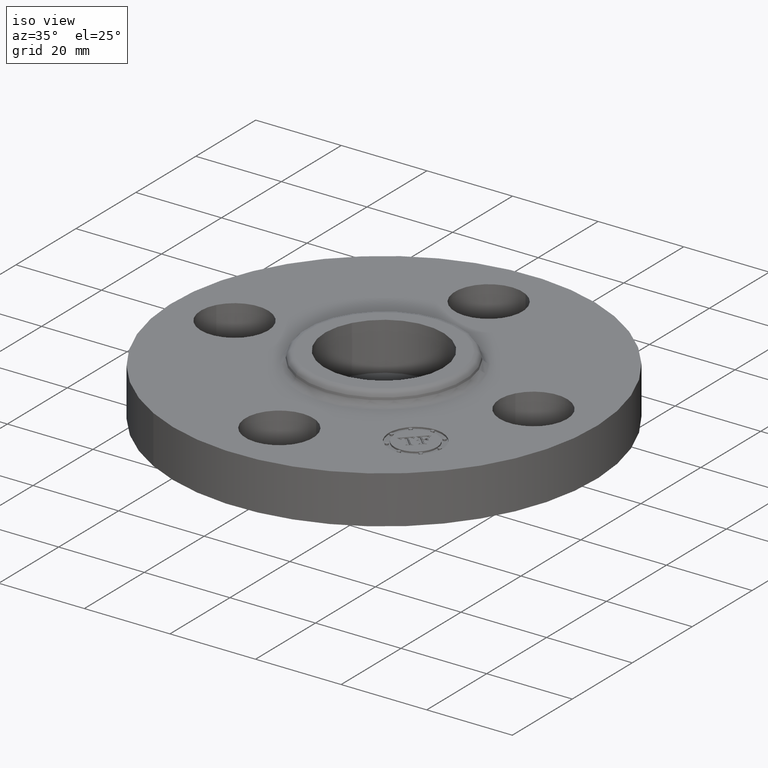
[diagram: clean part render]
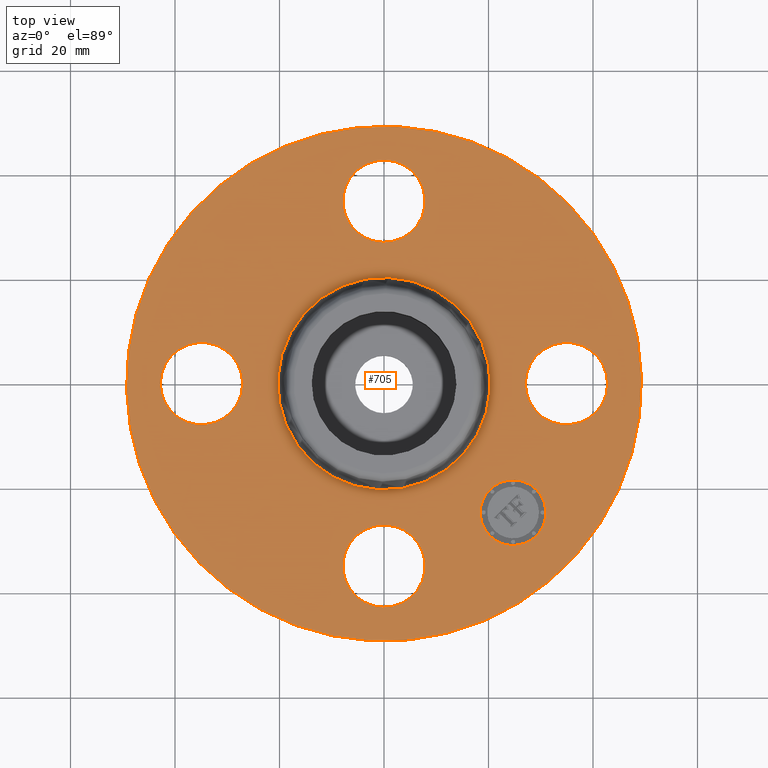
[diagram: tour spotlight — one face highlighted and labeled with its STEP entity id]
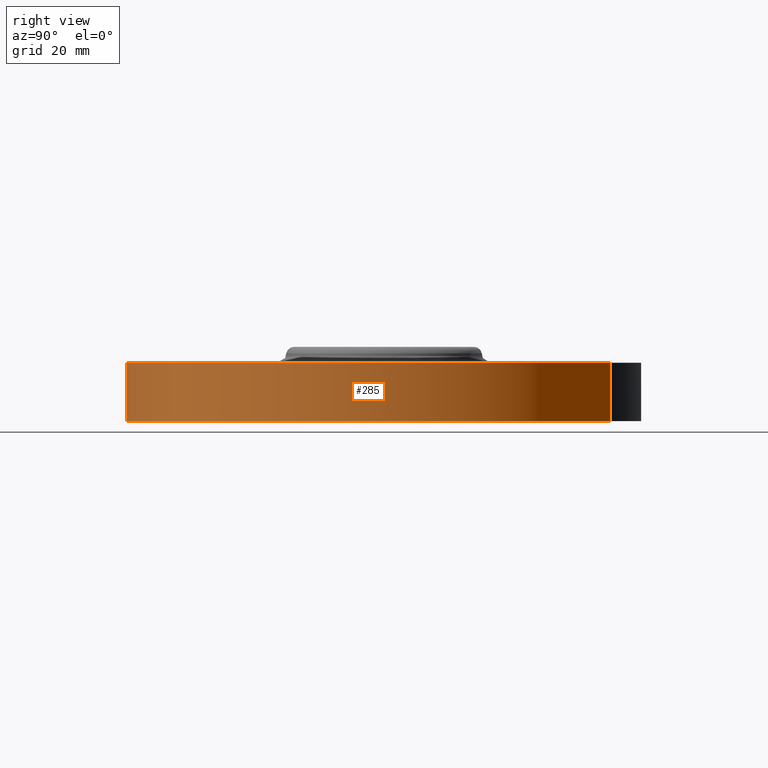
[diagram: tour spotlight — one face highlighted and labeled with its STEP entity id]
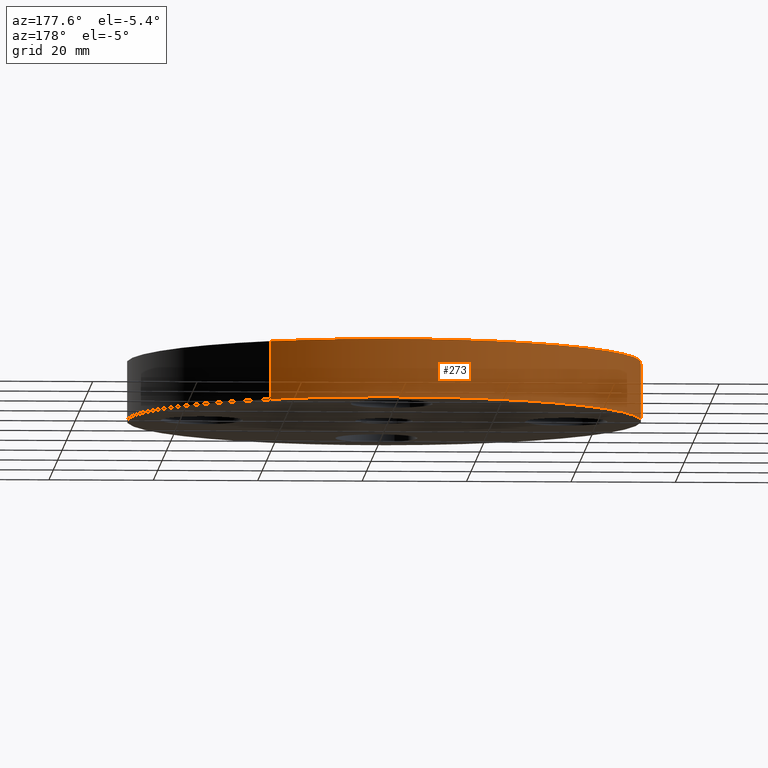
[diagram: tour spotlight — one face highlighted and labeled with its STEP entity id]
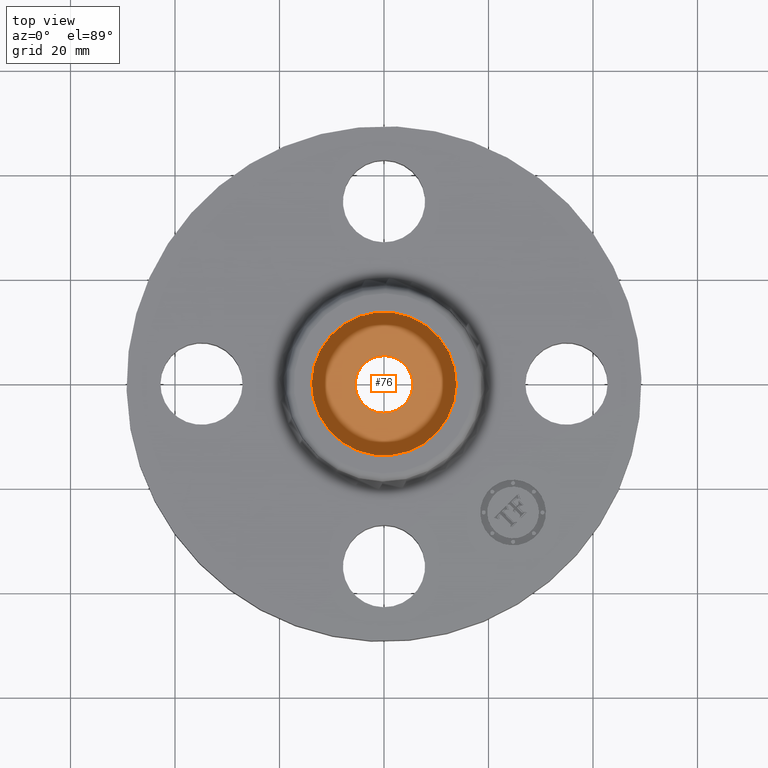
[diagram: tour spotlight — one face highlighted and labeled with its STEP entity id]
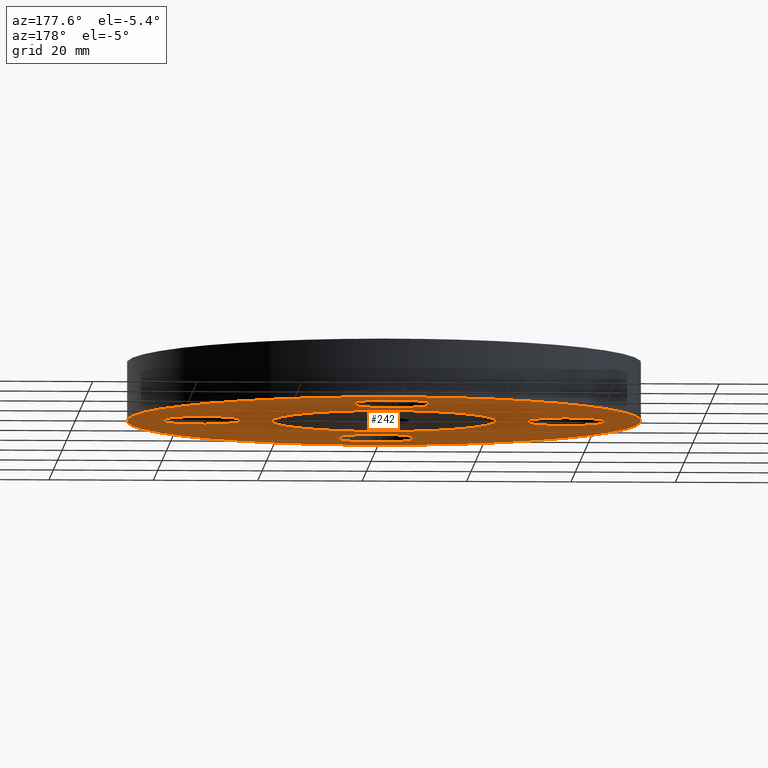
[diagram: tour spotlight — one face highlighted and labeled with its STEP entity id]
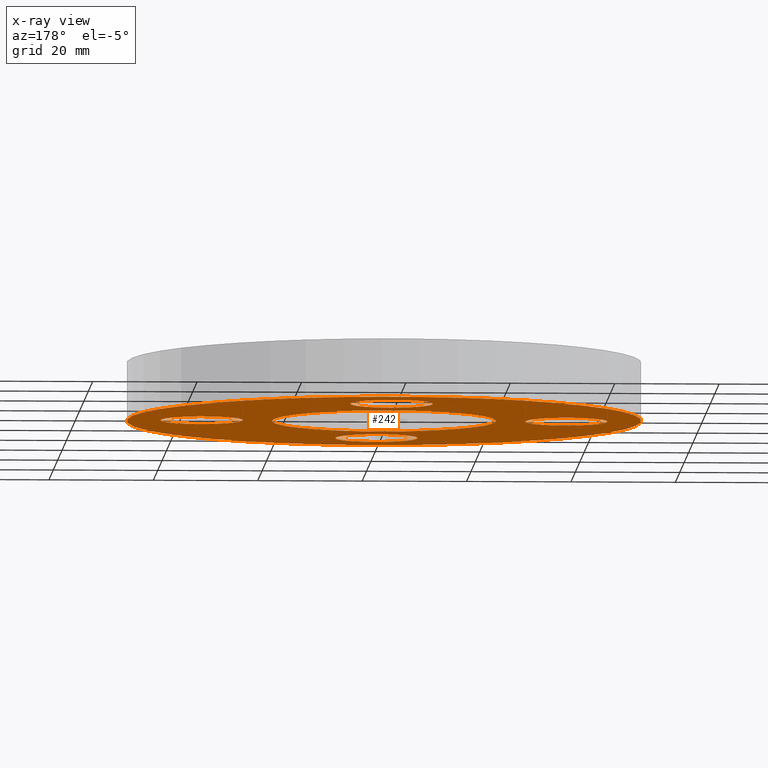
[diagram: x-ray of the same camera — body ghosted, this tour face saturated]
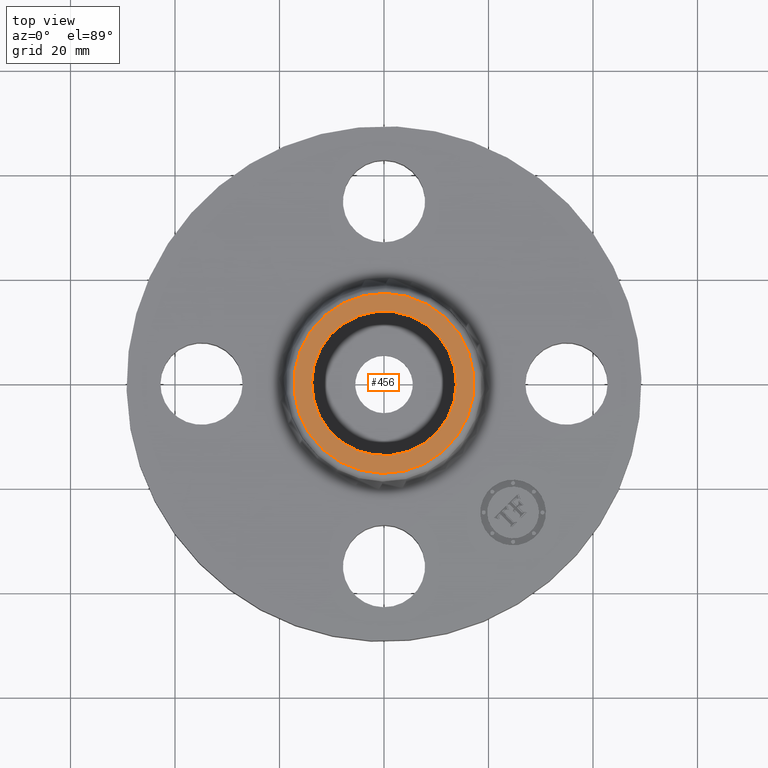
[diagram: tour spotlight — one face highlighted and labeled with its STEP entity id]
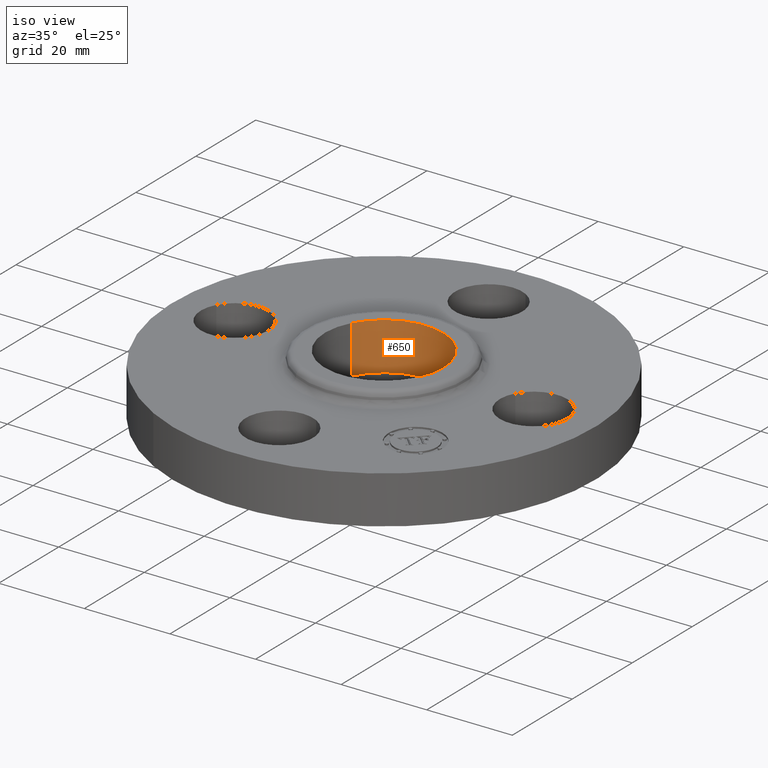
[diagram: tour spotlight — one face highlighted and labeled with its STEP entity id]
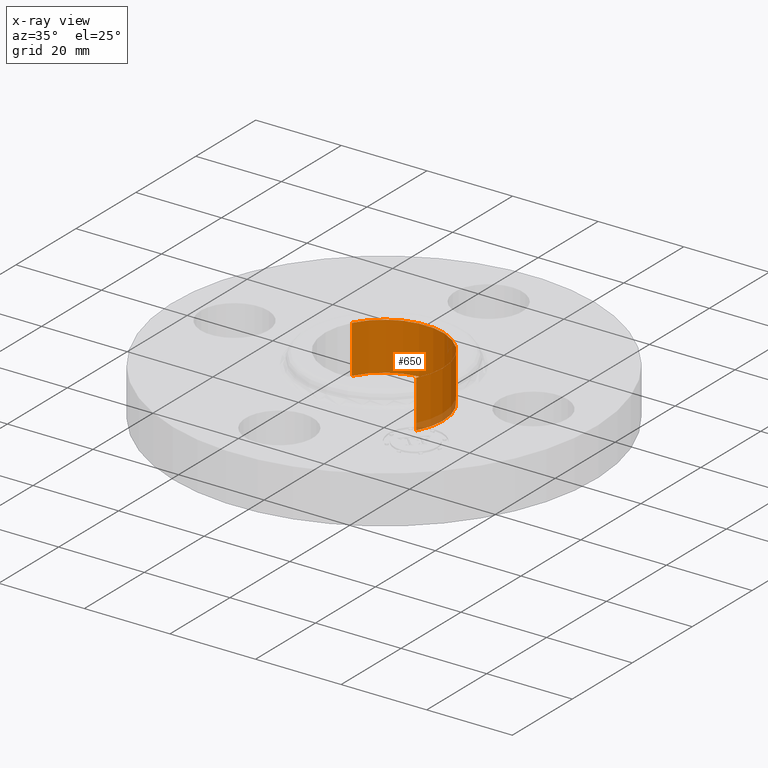
[diagram: x-ray of the same camera — body ghosted, this tour face saturated]
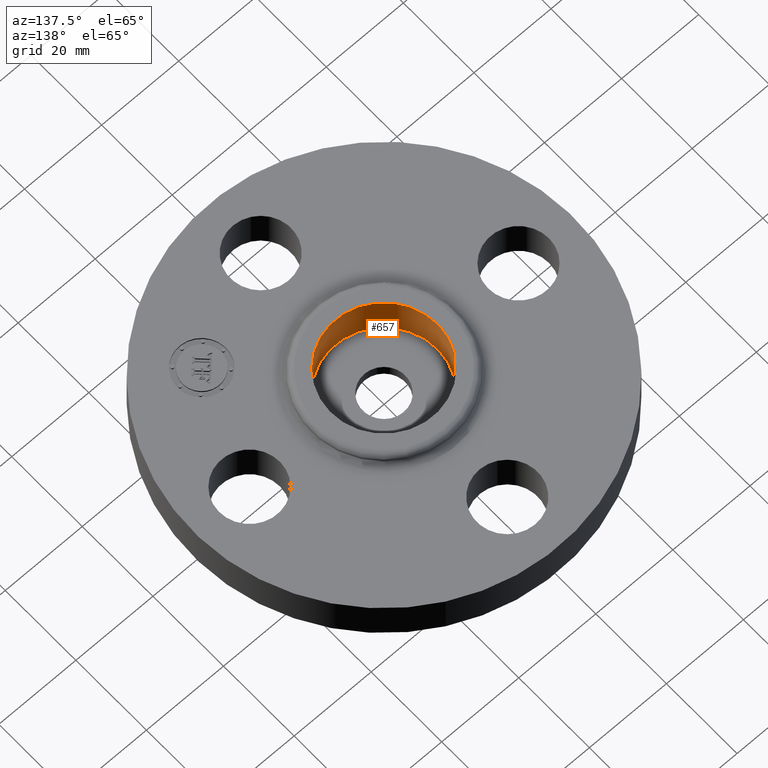
[diagram: tour spotlight — one face highlighted and labeled with its STEP entity id]
A machine part: a face-by-face anatomy tour. The part has 410 B-rep faces; the first image is the clean iso view, then the 8 largest visible faces are spotlighted one at a time (largest first), each with its STEP entity span.

Face 1 — top view, entity #705. In plain terms, the highlighted planar face has unit normal (0, 0, -1).
Definition (entity closure, byte-faithful):
#257=AXIS2_PLACEMENT_3D('Circle Axis2P3D',#255,#256,$) ;
#276=AXIS2_PLACEMENT_3D('Circle Axis2P3D',#274,#275,$) ;
#293=AXIS2_PLACEMENT_3D('Circle Axis2P3D',#291,#292,$) ;
#328=AXIS2_PLACEMENT_3D('Circle Axis2P3D',#326,#327,$) ;
#478=AXIS2_PLACEMENT_3D('Circle Axis2P3D',#476,#477,$) ;
#490=AXIS2_PLACEMENT_3D('Circle Axis2P3D',#488,#489,$) ;
#521=AXIS2_PLACEMENT_3D('Circle Axis2P3D',#519,#520,$) ;
#533=AXIS2_PLACEMENT_3D('Circle Axis2P3D',#531,#532,$) ;
#564=AXIS2_PLACEMENT_3D('Circle Axis2P3D',#562,#563,$) ;
#576=AXIS2_PLACEMENT_3D('Circle Axis2P3D',#574,#575,$) ;
#607=AXIS2_PLACEMENT_3D('Circle Axis2P3D',#605,#606,$) ;
#619=AXIS2_PLACEMENT_3D('Circle Axis2P3D',#617,#618,$) ;
#661=AXIS2_PLACEMENT_3D('Plane Axis2P3D',#658,#659,#660) ;
#689=AXIS2_PLACEMENT_3D('Circle Axis2P3D',#687,#688,$) ;
#698=AXIS2_PLACEMENT_3D('Circle Axis2P3D',#696,#697,$) ;
#252=CARTESIAN_POINT('Vertex',(-0.930085544896,-1.70251017007,0.440000000002)) ;
#255=CARTESIAN_POINT('Axis2P3D Location',(0.,0.,0.440000000002)) ;
#259=CARTESIAN_POINT('Vertex',(0.930085544896,1.70251017007,0.440000000002)) ;
#274=CARTESIAN_POINT('Axis2P3D Location',(0.,0.,0.440000000002)) ;
#291=CARTESIAN_POINT('Axis2P3D Location',(0.,0.,0.440000000002)) ;
#295=CARTESIAN_POINT('Vertex',(0.383706301512,0.702369673661,0.440000000002)) ;
#297=CARTESIAN_POINT('Vertex',(-0.383706301512,-0.702369673661,0.440000000002)) ;
#326=CARTESIAN_POINT('Axis2P3D Location',(0.,0.,0.440000000002)) ;
#466=CARTESIAN_POINT('Vertex',(0.148621916968,1.64705059419,0.440000000002)) ;
#473=CARTESIAN_POINT('Vertex',(-0.148621916968,1.10294940582,0.440000000002)) ;
#476=CARTESIAN_POINT('Axis2P3D Location',(-2.52583402325E-016,1.37500000001,0.440000000002)) ;
#488=CARTESIAN_POINT('Axis2P3D Location',(-2.52583402325E-016,1.37500000001,0.440000000002)) ;
#509=CARTESIAN_POINT('Vertex',(-1.64705059419,0.148621916968,0.440000000002)) ;
#516=CARTESIAN_POINT('Vertex',(-1.10294940582,-0.148621916968,0.440000000002)) ;
#519=CARTESIAN_POINT('Axis2P3D Location',(-1.37500000001,-1.68388934883E-016,0.440000000002)) ;
#531=CARTESIAN_POINT('Axis2P3D Location',(-1.37500000001,-1.68388934883E-016,0.440000000002)) ;
#552=CARTESIAN_POINT('Vertex',(-0.148621916968,-1.64705059419,0.440000000002)) ;
#559=CARTESIAN_POINT('Vertex',(0.148621916968,-1.10294940582,0.440000000002)) ;
#562=CARTESIAN_POINT('Axis2P3D Location',(-1.9554676711E-016,-1.37500000001,0.440000000002)) ;
#574=CARTESIAN_POINT('Axis2P3D Location',(-1.9554676711E-016,-1.37500000001,0.440000000002)) ;
#595=CARTESIAN_POINT('Vertex',(1.10294940582,0.148621916968,0.440000000002)) ;
#602=CARTESIAN_POINT('Vertex',(1.64705059419,-0.148621916968,0.440000000002)) ;
#605=CARTESIAN_POINT('Axis2P3D Location',(1.37500000001,0.,0.440000000002)) ;
#617=CARTESIAN_POINT('Axis2P3D Location',(1.37500000001,0.,0.440000000002)) ;
#658=CARTESIAN_POINT('Axis2P3D Location',(0.,1.94000000001,0.440000000002)) ;
#687=CARTESIAN_POINT('Axis2P3D Location',(0.972271824135,-0.972271824135,0.440000000002)) ;
#691=CARTESIAN_POINT('Vertex',(1.14728075248,-0.797262895791,0.440000000002)) ;
#693=CARTESIAN_POINT('Vertex',(0.797262895791,-1.14728075248,0.440000000002)) ;
#696=CARTESIAN_POINT('Axis2P3D Location',(0.972271824135,-0.972271824135,0.440000000002)) ;
#256=DIRECTION('Axis2P3D Direction',(0.,0.,-0.0393700787402)) ;
#275=DIRECTION('Axis2P3D Direction',(0.,0.,-0.0393700787402)) ;
#292=DIRECTION('Axis2P3D Direction',(0.,0.,-0.0393700787402)) ;
#327=DIRECTION('Axis2P3D Direction',(0.,0.,-0.0393700787402)) ;
#477=DIRECTION('Axis2P3D Direction',(0.,0.,-0.0393700787402)) ;
#489=DIRECTION('Axis2P3D Direction',(0.,0.,-0.0393700787402)) ;
#520=DIRECTION('Axis2P3D Direction',(-0.,0.,-0.0393700787402)) ;
#532=DIRECTION('Axis2P3D Direction',(-0.,0.,-0.0393700787402)) ;
#563=DIRECTION('Axis2P3D Direction',(0.,-0.,-0.0393700787402)) ;
#575=DIRECTION('Axis2P3D Direction',(0.,-0.,-0.0393700787402)) ;
#606=DIRECTION('Axis2P3D Direction',(0.,-0.,-0.0393700787402)) ;
#618=DIRECTION('Axis2P3D Direction',(0.,-0.,-0.0393700787402)) ;
#659=DIRECTION('Axis2P3D Direction',(0.,0.,-0.0393700787402)) ;
#660=DIRECTION('Axis2P3D XDirection',(0.0393700787402,0.,0.)) ;
#688=DIRECTION('Axis2P3D Direction',(0.,0.,-0.0393700787402)) ;
#697=DIRECTION('Axis2P3D Direction',(0.,0.,-0.0393700787402)) ;
#664=ORIENTED_EDGE('',*,*,#278,.F.) ;
#665=ORIENTED_EDGE('',*,*,#261,.F.) ;
#668=ORIENTED_EDGE('',*,*,#609,.T.) ;
#669=ORIENTED_EDGE('',*,*,#621,.T.) ;
#672=ORIENTED_EDGE('',*,*,#330,.T.) ;
#673=ORIENTED_EDGE('',*,*,#299,.T.) ;
#676=ORIENTED_EDGE('',*,*,#566,.T.) ;
#677=ORIENTED_EDGE('',*,*,#578,.T.) ;
#680=ORIENTED_EDGE('',*,*,#523,.T.) ;
#681=ORIENTED_EDGE('',*,*,#535,.T.) ;
#684=ORIENTED_EDGE('',*,*,#480,.T.) ;
#685=ORIENTED_EDGE('',*,*,#492,.T.) ;
#702=ORIENTED_EDGE('',*,*,#695,.T.) ;
#703=ORIENTED_EDGE('',*,*,#700,.T.) ;
#670=FACE_BOUND('',#667,.T.) ;
#674=FACE_BOUND('',#671,.T.) ;
#678=FACE_BOUND('',#675,.T.) ;
#682=FACE_BOUND('',#679,.T.) ;
#686=FACE_BOUND('',#683,.T.) ;
#704=FACE_BOUND('',#701,.T.) ;
#705=ADVANCED_FACE('PartBody',(#666,#670,#674,#678,#682,#686,#704),#662,.F.) ;
#258=CIRCLE('generated circle',#257,1.94000000001) ;
#277=CIRCLE('generated circle',#276,1.94000000001) ;
#294=CIRCLE('generated circle',#293,0.800345977874) ;
#329=CIRCLE('generated circle',#328,0.800345977874) ;
#479=CIRCLE('generated circle',#478,0.310000000001) ;
#491=CIRCLE('generated circle',#490,0.310000000001) ;
#522=CIRCLE('generated circle',#521,0.310000000001) ;
#534=CIRCLE('generated circle',#533,0.310000000001) ;
#565=CIRCLE('generated circle',#564,0.310000000001) ;
#577=CIRCLE('generated circle',#576,0.310000000001) ;
#608=CIRCLE('generated circle',#607,0.310000000001) ;
#620=CIRCLE('generated circle',#619,0.310000000001) ;
#690=CIRCLE('generated circle',#689,0.247500000001) ;
#699=CIRCLE('generated circle',#698,0.247500000001) ;
#261=EDGE_CURVE('',#253,#260,#258,.T.) ;
#278=EDGE_CURVE('',#260,#253,#277,.T.) ;
#299=EDGE_CURVE('',#296,#298,#294,.T.) ;
#330=EDGE_CURVE('',#298,#296,#329,.T.) ;
#480=EDGE_CURVE('',#467,#474,#479,.T.) ;
#492=EDGE_CURVE('',#474,#467,#491,.T.) ;
#523=EDGE_CURVE('',#510,#517,#522,.T.) ;
#535=EDGE_CURVE('',#517,#510,#534,.T.) ;
#566=EDGE_CURVE('',#553,#560,#565,.T.) ;
#578=EDGE_CURVE('',#560,#553,#577,.T.) ;
#609=EDGE_CURVE('',#596,#603,#608,.T.) ;
#621=EDGE_CURVE('',#603,#596,#620,.T.) ;
#695=EDGE_CURVE('',#692,#694,#690,.T.) ;
#700=EDGE_CURVE('',#694,#692,#699,.T.) ;
#663=EDGE_LOOP('',(#664,#665)) ;
#667=EDGE_LOOP('',(#668,#669)) ;
#671=EDGE_LOOP('',(#672,#673)) ;
#675=EDGE_LOOP('',(#676,#677)) ;
#679=EDGE_LOOP('',(#680,#681)) ;
#683=EDGE_LOOP('',(#684,#685)) ;
#701=EDGE_LOOP('',(#702,#703)) ;
#666=FACE_OUTER_BOUND('',#663,.T.) ;
#662=PLANE('',#661) ;
#253=VERTEX_POINT('',#252) ;
#260=VERTEX_POINT('',#259) ;
#296=VERTEX_POINT('',#295) ;
#298=VERTEX_POINT('',#297) ;
#467=VERTEX_POINT('',#466) ;
#474=VERTEX_POINT('',#473) ;
#510=VERTEX_POINT('',#509) ;
#517=VERTEX_POINT('',#516) ;
#553=VERTEX_POINT('',#552) ;
#560=VERTEX_POINT('',#559) ;
#596=VERTEX_POINT('',#595) ;
#603=VERTEX_POINT('',#602) ;
#692=VERTEX_POINT('',#691) ;
#694=VERTEX_POINT('',#693) ;

Face 2 — right view, entity #285. In plain terms, the highlighted cylindrical surface (partial cylindrical patch) has radius 49.276 mm, axis along (0, 0, -1).
Definition (entity closure, byte-faithful):
#159=AXIS2_PLACEMENT_3D('Circle Axis2P3D',#157,#158,$) ;
#246=AXIS2_PLACEMENT_3D('Cylinder Axis2P3D',#243,#244,#245) ;
#276=AXIS2_PLACEMENT_3D('Circle Axis2P3D',#274,#275,$) ;
#152=CARTESIAN_POINT('Vertex',(-0.930085544896,-1.70251017007,2.09805925913E-016)) ;
#154=CARTESIAN_POINT('Vertex',(0.930085544896,1.70251017007,2.09805925913E-016)) ;
#157=CARTESIAN_POINT('Axis2P3D Location',(0.,0.,0.)) ;
#243=CARTESIAN_POINT('Axis2P3D Location',(0.,0.,0.280000000001)) ;
#248=CARTESIAN_POINT('Line Origine',(-0.930085544896,-1.70251017007,0.220000000001)) ;
#252=CARTESIAN_POINT('Vertex',(-0.930085544896,-1.70251017007,0.440000000002)) ;
#259=CARTESIAN_POINT('Vertex',(0.930085544896,1.70251017007,0.440000000002)) ;
#262=CARTESIAN_POINT('Line Origine',(0.930085544896,1.70251017007,0.220000000001)) ;
#274=CARTESIAN_POINT('Axis2P3D Location',(0.,0.,0.440000000002)) ;
#158=DIRECTION('Axis2P3D Direction',(0.,0.,-0.0393700787402)) ;
#244=DIRECTION('Axis2P3D Direction',(0.,0.,-0.0393700787402)) ;
#245=DIRECTION('Axis2P3D XDirection',(0.0188750212049,0.0345504945626,0.)) ;
#249=DIRECTION('Vector Direction',(0.,0.,-0.0393700787402)) ;
#263=DIRECTION('Vector Direction',(0.,0.,-0.0393700787402)) ;
#275=DIRECTION('Axis2P3D Direction',(0.,0.,-0.0393700787402)) ;
#250=VECTOR('Line Direction',#249,0.0393700787402) ;
#264=VECTOR('Line Direction',#263,0.0393700787402) ;
#280=ORIENTED_EDGE('',*,*,#161,.F.) ;
#281=ORIENTED_EDGE('',*,*,#266,.T.) ;
#282=ORIENTED_EDGE('',*,*,#278,.T.) ;
#283=ORIENTED_EDGE('',*,*,#254,.F.) ;
#285=ADVANCED_FACE('PartBody',(#284),#247,.T.) ;
#160=CIRCLE('generated circle',#159,1.94000000001) ;
#277=CIRCLE('generated circle',#276,1.94000000001) ;
#247=CYLINDRICAL_SURFACE('generated cylinder',#246,1.94000000001) ;
#161=EDGE_CURVE('',#155,#153,#160,.T.) ;
#254=EDGE_CURVE('',#153,#253,#251,.F.) ;
#266=EDGE_CURVE('',#155,#260,#265,.F.) ;
#278=EDGE_CURVE('',#260,#253,#277,.T.) ;
#279=EDGE_LOOP('',(#280,#281,#282,#283)) ;
#284=FACE_OUTER_BOUND('',#279,.T.) ;
#251=LINE('Line',#248,#250) ;
#265=LINE('Line',#262,#264) ;
#153=VERTEX_POINT('',#152) ;
#155=VERTEX_POINT('',#154) ;
#253=VERTEX_POINT('',#252) ;
#260=VERTEX_POINT('',#259) ;

Face 3 — auxiliary view, entity #273. In plain terms, the highlighted cylindrical surface (partial cylindrical patch) has radius 49.276 mm, axis along (0, 0, -1).
Definition (entity closure, byte-faithful):
#150=AXIS2_PLACEMENT_3D('Circle Axis2P3D',#148,#149,$) ;
#246=AXIS2_PLACEMENT_3D('Cylinder Axis2P3D',#243,#244,#245) ;
#257=AXIS2_PLACEMENT_3D('Circle Axis2P3D',#255,#256,$) ;
#148=CARTESIAN_POINT('Axis2P3D Location',(0.,0.,0.)) ;
#152=CARTESIAN_POINT('Vertex',(-0.930085544896,-1.70251017007,2.09805925913E-016)) ;
#154=CARTESIAN_POINT('Vertex',(0.930085544896,1.70251017007,2.09805925913E-016)) ;
#243=CARTESIAN_POINT('Axis2P3D Location',(0.,0.,0.280000000001)) ;
#248=CARTESIAN_POINT('Line Origine',(-0.930085544896,-1.70251017007,0.220000000001)) ;
#252=CARTESIAN_POINT('Vertex',(-0.930085544896,-1.70251017007,0.440000000002)) ;
#255=CARTESIAN_POINT('Axis2P3D Location',(0.,0.,0.440000000002)) ;
#259=CARTESIAN_POINT('Vertex',(0.930085544896,1.70251017007,0.440000000002)) ;
#262=CARTESIAN_POINT('Line Origine',(0.930085544896,1.70251017007,0.220000000001)) ;
#149=DIRECTION('Axis2P3D Direction',(0.,0.,-0.0393700787402)) ;
#244=DIRECTION('Axis2P3D Direction',(0.,0.,-0.0393700787402)) ;
#245=DIRECTION('Axis2P3D XDirection',(0.0188750212049,0.0345504945626,0.)) ;
#249=DIRECTION('Vector Direction',(0.,0.,-0.0393700787402)) ;
#256=DIRECTION('Axis2P3D Direction',(0.,0.,-0.0393700787402)) ;
#263=DIRECTION('Vector Direction',(0.,0.,-0.0393700787402)) ;
#250=VECTOR('Line Direction',#249,0.0393700787402) ;
#264=VECTOR('Line Direction',#263,0.0393700787402) ;
#268=ORIENTED_EDGE('',*,*,#156,.F.) ;
#269=ORIENTED_EDGE('',*,*,#254,.T.) ;
#270=ORIENTED_EDGE('',*,*,#261,.T.) ;
#271=ORIENTED_EDGE('',*,*,#266,.F.) ;
#273=ADVANCED_FACE('PartBody',(#272),#247,.T.) ;
#151=CIRCLE('generated circle',#150,1.94000000001) ;
#258=CIRCLE('generated circle',#257,1.94000000001) ;
#247=CYLINDRICAL_SURFACE('generated cylinder',#246,1.94000000001) ;
#156=EDGE_CURVE('',#153,#155,#151,.T.) ;
#254=EDGE_CURVE('',#153,#253,#251,.F.) ;
#261=EDGE_CURVE('',#253,#260,#258,.T.) ;
#266=EDGE_CURVE('',#155,#260,#265,.F.) ;
#267=EDGE_LOOP('',(#268,#269,#270,#271)) ;
#272=FACE_OUTER_BOUND('',#267,.T.) ;
#251=LINE('Line',#248,#250) ;
#265=LINE('Line',#262,#264) ;
#153=VERTEX_POINT('',#152) ;
#155=VERTEX_POINT('',#154) ;
#253=VERTEX_POINT('',#252) ;
#260=VERTEX_POINT('',#259) ;

Face 4 — top view, entity #76. In plain terms, the highlighted planar face has unit normal (0, 0, -1).
Definition (entity closure, byte-faithful):
#38=AXIS2_PLACEMENT_3D('Plane Axis2P3D',#35,#36,#37) ;
#42=AXIS2_PLACEMENT_3D('Circle Axis2P3D',#40,#41,$) ;
#51=AXIS2_PLACEMENT_3D('Circle Axis2P3D',#49,#50,$) ;
#60=AXIS2_PLACEMENT_3D('Circle Axis2P3D',#58,#59,$) ;
#69=AXIS2_PLACEMENT_3D('Circle Axis2P3D',#67,#68,$) ;
#35=CARTESIAN_POINT('Axis2P3D Location',(0.,-6.99353086378E-017,0.12)) ;
#40=CARTESIAN_POINT('Axis2P3D Location',(0.,-6.99353086378E-017,0.12)) ;
#44=CARTESIAN_POINT('Vertex',(-0.478282496232,0.26128691854,0.12)) ;
#46=CARTESIAN_POINT('Vertex',(0.478282496232,-0.26128691854,0.12)) ;
#49=CARTESIAN_POINT('Axis2P3D Location',(0.,-6.99353086378E-017,0.12)) ;
#58=CARTESIAN_POINT('Axis2P3D Location',(-8.74191357973E-017,-4.37095678986E-017,0.12)) ;
#62=CARTESIAN_POINT('Vertex',(-0.104035341878,-0.190435415931,0.12)) ;
#64=CARTESIAN_POINT('Vertex',(0.104035341878,0.190435415931,0.12)) ;
#67=CARTESIAN_POINT('Axis2P3D Location',(-8.74191357973E-017,-4.37095678986E-017,0.12)) ;
#36=DIRECTION('Axis2P3D Direction',(0.,0.,-0.0393700787402)) ;
#37=DIRECTION('Axis2P3D XDirection',(0.0393700787402,0.,0.)) ;
#41=DIRECTION('Axis2P3D Direction',(0.,0.,-0.0393700787402)) ;
#50=DIRECTION('Axis2P3D Direction',(0.,0.,-0.0393700787402)) ;
#59=DIRECTION('Axis2P3D Direction',(0.,0.,-0.0393700787402)) ;
#68=DIRECTION('Axis2P3D Direction',(0.,0.,-0.0393700787402)) ;
#55=ORIENTED_EDGE('',*,*,#48,.F.) ;
#56=ORIENTED_EDGE('',*,*,#53,.F.) ;
#73=ORIENTED_EDGE('',*,*,#66,.T.) ;
#74=ORIENTED_EDGE('',*,*,#71,.T.) ;
#75=FACE_BOUND('',#72,.T.) ;
#76=ADVANCED_FACE('PartBody',(#57,#75),#39,.F.) ;
#43=CIRCLE('generated circle',#42,0.545000000002) ;
#52=CIRCLE('generated circle',#51,0.545000000002) ;
#61=CIRCLE('generated circle',#60,0.217000000001) ;
#70=CIRCLE('generated circle',#69,0.217000000001) ;
#48=EDGE_CURVE('',#45,#47,#43,.T.) ;
#53=EDGE_CURVE('',#47,#45,#52,.T.) ;
#66=EDGE_CURVE('',#63,#65,#61,.T.) ;
#71=EDGE_CURVE('',#65,#63,#70,.T.) ;
#54=EDGE_LOOP('',(#55,#56)) ;
#72=EDGE_LOOP('',(#73,#74)) ;
#57=FACE_OUTER_BOUND('',#54,.T.) ;
#39=PLANE('',#38) ;
#45=VERTEX_POINT('',#44) ;
#47=VERTEX_POINT('',#46) ;
#63=VERTEX_POINT('',#62) ;
#65=VERTEX_POINT('',#64) ;

Face 5 — auxiliary view, entity #242. An x-ray twin of the same camera follows (body ghosted, this face saturated) — the face is partly hidden behind the body. In plain terms, the highlighted planar face has unit normal (0, 0, -1).
Definition (entity closure, byte-faithful):
#123=AXIS2_PLACEMENT_3D('Plane Axis2P3D',#120,#121,#122) ;
#127=AXIS2_PLACEMENT_3D('Circle Axis2P3D',#125,#126,$) ;
#136=AXIS2_PLACEMENT_3D('Circle Axis2P3D',#134,#135,$) ;
#150=AXIS2_PLACEMENT_3D('Circle Axis2P3D',#148,#149,$) ;
#159=AXIS2_PLACEMENT_3D('Circle Axis2P3D',#157,#158,$) ;
#168=AXIS2_PLACEMENT_3D('Circle Axis2P3D',#166,#167,$) ;
#177=AXIS2_PLACEMENT_3D('Circle Axis2P3D',#175,#176,$) ;
#190=AXIS2_PLACEMENT_3D('Circle Axis2P3D',#188,#189,$) ;
#199=AXIS2_PLACEMENT_3D('Circle Axis2P3D',#197,#198,$) ;
#208=AXIS2_PLACEMENT_3D('Circle Axis2P3D',#206,#207,$) ;
#217=AXIS2_PLACEMENT_3D('Circle Axis2P3D',#215,#216,$) ;
#226=AXIS2_PLACEMENT_3D('Circle Axis2P3D',#224,#225,$) ;
#235=AXIS2_PLACEMENT_3D('Circle Axis2P3D',#233,#234,$) ;
#120=CARTESIAN_POINT('Axis2P3D Location',(0.,0.217000000001,0.)) ;
#125=CARTESIAN_POINT('Axis2P3D Location',(0.,0.,0.)) ;
#129=CARTESIAN_POINT('Vertex',(-0.405114580122,-0.7415572648,0.)) ;
#131=CARTESIAN_POINT('Vertex',(0.405114580122,0.7415572648,0.)) ;
#134=CARTESIAN_POINT('Axis2P3D Location',(0.,0.,0.)) ;
#148=CARTESIAN_POINT('Axis2P3D Location',(0.,0.,0.)) ;
#152=CARTESIAN_POINT('Vertex',(-0.930085544896,-1.70251017007,2.09805925913E-016)) ;
#154=CARTESIAN_POINT('Vertex',(0.930085544896,1.70251017007,2.09805925913E-016)) ;
#157=CARTESIAN_POINT('Axis2P3D Location',(0.,0.,0.)) ;
#166=CARTESIAN_POINT('Axis2P3D Location',(1.37500000001,-1.04902962957E-016,0.)) ;
#170=CARTESIAN_POINT('Vertex',(1.64705059419,-0.148621916968,0.)) ;
#172=CARTESIAN_POINT('Vertex',(1.10294940582,0.148621916968,0.)) ;
#175=CARTESIAN_POINT('Axis2P3D Location',(1.37500000001,1.39870617276E-016,0.)) ;
#188=CARTESIAN_POINT('Axis2P3D Location',(-6.99353086378E-017,-1.37500000001,0.)) ;
#192=CARTESIAN_POINT('Vertex',(0.148621916968,-1.10294940582,0.)) ;
#194=CARTESIAN_POINT('Vertex',(-0.148621916968,-1.64705059419,0.)) ;
#197=CARTESIAN_POINT('Axis2P3D Location',(-3.49676543189E-016,-1.37500000001,0.)) ;
#206=CARTESIAN_POINT('Axis2P3D Location',(-1.37500000001,-6.99353086378E-017,0.)) ;
#210=CARTESIAN_POINT('Vertex',(-1.10294940582,-0.148621916968,0.)) ;
#212=CARTESIAN_POINT('Vertex',(-1.64705059419,0.148621916968,0.)) ;
#215=CARTESIAN_POINT('Axis2P3D Location',(-1.37500000001,-2.09805925913E-016,0.)) ;
#224=CARTESIAN_POINT('Axis2P3D Location',(-3.84644197508E-016,1.37500000001,0.)) ;
#228=CARTESIAN_POINT('Vertex',(-0.148621916968,1.10294940582,0.)) ;
#230=CARTESIAN_POINT('Vertex',(0.148621916968,1.64705059419,0.)) ;
#233=CARTESIAN_POINT('Axis2P3D Location',(-1.04902962957E-016,1.37500000001,0.)) ;
#121=DIRECTION('Axis2P3D Direction',(0.,0.,-0.0393700787402)) ;
#122=DIRECTION('Axis2P3D XDirection',(0.0393700787402,0.,0.)) ;
#126=DIRECTION('Axis2P3D Direction',(0.,0.,-0.0393700787402)) ;
#135=DIRECTION('Axis2P3D Direction',(0.,0.,-0.0393700787402)) ;
#149=DIRECTION('Axis2P3D Direction',(0.,0.,-0.0393700787402)) ;
#158=DIRECTION('Axis2P3D Direction',(0.,0.,-0.0393700787402)) ;
#167=DIRECTION('Axis2P3D Direction',(0.,0.,-0.0393700787402)) ;
#176=DIRECTION('Axis2P3D Direction',(0.,0.,-0.0393700787402)) ;
#189=DIRECTION('Axis2P3D Direction',(0.,0.,-0.0393700787402)) ;
#198=DIRECTION('Axis2P3D Direction',(0.,0.,-0.0393700787402)) ;
#207=DIRECTION('Axis2P3D Direction',(0.,0.,-0.0393700787402)) ;
#216=DIRECTION('Axis2P3D Direction',(0.,0.,-0.0393700787402)) ;
#225=DIRECTION('Axis2P3D Direction',(0.,0.,-0.0393700787402)) ;
#234=DIRECTION('Axis2P3D Direction',(0.,0.,-0.0393700787402)) ;
#163=ORIENTED_EDGE('',*,*,#156,.T.) ;
#164=ORIENTED_EDGE('',*,*,#161,.T.) ;
#181=ORIENTED_EDGE('',*,*,#174,.F.) ;
#182=ORIENTED_EDGE('',*,*,#179,.F.) ;
#185=ORIENTED_EDGE('',*,*,#138,.F.) ;
#186=ORIENTED_EDGE('',*,*,#133,.F.) ;
#203=ORIENTED_EDGE('',*,*,#196,.F.) ;
#204=ORIENTED_EDGE('',*,*,#201,.F.) ;
#221=ORIENTED_EDGE('',*,*,#214,.F.) ;
#222=ORIENTED_EDGE('',*,*,#219,.F.) ;
#239=ORIENTED_EDGE('',*,*,#232,.F.) ;
#240=ORIENTED_EDGE('',*,*,#237,.F.) ;
#183=FACE_BOUND('',#180,.T.) ;
#187=FACE_BOUND('',#184,.T.) ;
#205=FACE_BOUND('',#202,.T.) ;
#223=FACE_BOUND('',#220,.T.) ;
#241=FACE_BOUND('',#238,.T.) ;
#242=ADVANCED_FACE('PartBody',(#165,#183,#187,#205,#223,#241),#124,.T.) ;
#128=CIRCLE('generated circle',#127,0.845000000003) ;
#137=CIRCLE('generated circle',#136,0.845000000003) ;
#151=CIRCLE('generated circle',#150,1.94000000001) ;
#160=CIRCLE('generated circle',#159,1.94000000001) ;
#169=CIRCLE('generated circle',#168,0.310000000001) ;
#178=CIRCLE('generated circle',#177,0.310000000001) ;
#191=CIRCLE('generated circle',#190,0.310000000001) ;
#200=CIRCLE('generated circle',#199,0.310000000001) ;
#209=CIRCLE('generated circle',#208,0.310000000001) ;
#218=CIRCLE('generated circle',#217,0.310000000001) ;
#227=CIRCLE('generated circle',#226,0.310000000001) ;
#236=CIRCLE('generated circle',#235,0.310000000001) ;
#133=EDGE_CURVE('',#130,#132,#128,.T.) ;
#138=EDGE_CURVE('',#132,#130,#137,.T.) ;
#156=EDGE_CURVE('',#153,#155,#151,.T.) ;
#161=EDGE_CURVE('',#155,#153,#160,.T.) ;
#174=EDGE_CURVE('',#171,#173,#169,.T.) ;
#179=EDGE_CURVE('',#173,#171,#178,.T.) ;
#196=EDGE_CURVE('',#193,#195,#191,.T.) ;
#201=EDGE_CURVE('',#195,#193,#200,.T.) ;
#214=EDGE_CURVE('',#211,#213,#209,.T.) ;
#219=EDGE_CURVE('',#213,#211,#218,.T.) ;
#232=EDGE_CURVE('',#229,#231,#227,.T.) ;
#237=EDGE_CURVE('',#231,#229,#236,.T.) ;
#162=EDGE_LOOP('',(#163,#164)) ;
#180=EDGE_LOOP('',(#181,#182)) ;
#184=EDGE_LOOP('',(#185,#186)) ;
#202=EDGE_LOOP('',(#203,#204)) ;
#220=EDGE_LOOP('',(#221,#222)) ;
#238=EDGE_LOOP('',(#239,#240)) ;
#165=FACE_OUTER_BOUND('',#162,.T.) ;
#124=PLANE('',#123) ;
#130=VERTEX_POINT('',#129) ;
#132=VERTEX_POINT('',#131) ;
#153=VERTEX_POINT('',#152) ;
#155=VERTEX_POINT('',#154) ;
#171=VERTEX_POINT('',#170) ;
#173=VERTEX_POINT('',#172) ;
#193=VERTEX_POINT('',#192) ;
#195=VERTEX_POINT('',#194) ;
#211=VERTEX_POINT('',#210) ;
#213=VERTEX_POINT('',#212) ;
#229=VERTEX_POINT('',#228) ;
#231=VERTEX_POINT('',#230) ;

Face 6 — top view, entity #456. In plain terms, the highlighted planar face has unit normal (0, 0, -1).
Definition (entity closure, byte-faithful):
#400=AXIS2_PLACEMENT_3D('Circle Axis2P3D',#398,#399,$) ;
#419=AXIS2_PLACEMENT_3D('Circle Axis2P3D',#417,#418,$) ;
#432=AXIS2_PLACEMENT_3D('Plane Axis2P3D',#429,#430,#431) ;
#440=AXIS2_PLACEMENT_3D('Circle Axis2P3D',#438,#439,$) ;
#449=AXIS2_PLACEMENT_3D('Circle Axis2P3D',#447,#448,$) ;
#395=CARTESIAN_POINT('Vertex',(0.325287727474,0.595435191164,0.560000000002)) ;
#398=CARTESIAN_POINT('Axis2P3D Location',(0.,0.,0.560000000002)) ;
#402=CARTESIAN_POINT('Vertex',(-0.325287727474,-0.595435191164,0.560000000002)) ;
#417=CARTESIAN_POINT('Axis2P3D Location',(0.,0.,0.560000000002)) ;
#429=CARTESIAN_POINT('Axis2P3D Location',(0.,0.678494784447,0.560000000002)) ;
#438=CARTESIAN_POINT('Axis2P3D Location',(0.,1.39870617276E-016,0.560000000002)) ;
#442=CARTESIAN_POINT('Vertex',(-0.478282496232,0.26128691854,0.560000000002)) ;
#444=CARTESIAN_POINT('Vertex',(0.478282496232,-0.26128691854,0.560000000002)) ;
#447=CARTESIAN_POINT('Axis2P3D Location',(3.49676543189E-017,0.,0.560000000002)) ;
#399=DIRECTION('Axis2P3D Direction',(0.,0.,-0.0393700787402)) ;
#418=DIRECTION('Axis2P3D Direction',(0.,0.,-0.0393700787402)) ;
#430=DIRECTION('Axis2P3D Direction',(0.,0.,-0.0393700787402)) ;
#431=DIRECTION('Axis2P3D XDirection',(0.0393700787402,0.,0.)) ;
#439=DIRECTION('Axis2P3D Direction',(0.,0.,-0.0393700787402)) ;
#448=DIRECTION('Axis2P3D Direction',(0.,0.,-0.0393700787402)) ;
#435=ORIENTED_EDGE('',*,*,#404,.F.) ;
#436=ORIENTED_EDGE('',*,*,#421,.F.) ;
#453=ORIENTED_EDGE('',*,*,#446,.T.) ;
#454=ORIENTED_EDGE('',*,*,#451,.T.) ;
#455=FACE_BOUND('',#452,.T.) ;
#456=ADVANCED_FACE('PartBody',(#437,#455),#433,.F.) ;
#401=CIRCLE('generated circle',#400,0.678494784447) ;
#420=CIRCLE('generated circle',#419,0.678494784447) ;
#441=CIRCLE('generated circle',#440,0.545000000002) ;
#450=CIRCLE('generated circle',#449,0.545000000002) ;
#404=EDGE_CURVE('',#396,#403,#401,.T.) ;
#421=EDGE_CURVE('',#403,#396,#420,.T.) ;
#446=EDGE_CURVE('',#443,#445,#441,.T.) ;
#451=EDGE_CURVE('',#445,#443,#450,.T.) ;
#434=EDGE_LOOP('',(#435,#436)) ;
#452=EDGE_LOOP('',(#453,#454)) ;
#437=FACE_OUTER_BOUND('',#434,.T.) ;
#433=PLANE('',#432) ;
#396=VERTEX_POINT('',#395) ;
#403=VERTEX_POINT('',#402) ;
#443=VERTEX_POINT('',#442) ;
#445=VERTEX_POINT('',#444) ;

Face 7 — iso view, entity #650. An x-ray twin of the same camera follows (body ghosted, this face saturated) — the face is partly hidden behind the body. In plain terms, the highlighted cylindrical surface (partial cylindrical patch) has radius 13.843 mm, axis along (0, 0, -1).
Definition (entity closure, byte-faithful):
#42=AXIS2_PLACEMENT_3D('Circle Axis2P3D',#40,#41,$) ;
#440=AXIS2_PLACEMENT_3D('Circle Axis2P3D',#438,#439,$) ;
#632=AXIS2_PLACEMENT_3D('Cylinder Axis2P3D',#629,#630,#631) ;
#40=CARTESIAN_POINT('Axis2P3D Location',(0.,-6.99353086378E-017,0.12)) ;
#44=CARTESIAN_POINT('Vertex',(-0.478282496232,0.26128691854,0.12)) ;
#46=CARTESIAN_POINT('Vertex',(0.478282496232,-0.26128691854,0.12)) ;
#438=CARTESIAN_POINT('Axis2P3D Location',(0.,1.39870617276E-016,0.560000000002)) ;
#442=CARTESIAN_POINT('Vertex',(-0.478282496232,0.26128691854,0.560000000002)) ;
#444=CARTESIAN_POINT('Vertex',(0.478282496232,-0.26128691854,0.560000000002)) ;
#629=CARTESIAN_POINT('Axis2P3D Location',(0.,-6.99353086378E-017,0.556062992128)) ;
#634=CARTESIAN_POINT('Line Origine',(-0.478282496232,0.26128691854,0.340000000001)) ;
#639=CARTESIAN_POINT('Line Origine',(0.478282496232,-0.26128691854,0.340000000001)) ;
#41=DIRECTION('Axis2P3D Direction',(0.,0.,-0.0393700787402)) ;
#439=DIRECTION('Axis2P3D Direction',(0.,0.,-0.0393700787402)) ;
#630=DIRECTION('Axis2P3D Direction',(0.,0.,-0.0393700787402)) ;
#631=DIRECTION('Axis2P3D XDirection',(0.0345504945626,-0.0188750212049,0.)) ;
#635=DIRECTION('Vector Direction',(0.,0.,-0.0393700787402)) ;
#640=DIRECTION('Vector Direction',(0.,0.,-0.0393700787402)) ;
#636=VECTOR('Line Direction',#635,0.0393700787402) ;
#641=VECTOR('Line Direction',#640,0.0393700787402) ;
#645=ORIENTED_EDGE('',*,*,#446,.F.) ;
#646=ORIENTED_EDGE('',*,*,#638,.F.) ;
#647=ORIENTED_EDGE('',*,*,#48,.T.) ;
#648=ORIENTED_EDGE('',*,*,#643,.T.) ;
#650=ADVANCED_FACE('PartBody',(#649),#633,.F.) ;
#43=CIRCLE('generated circle',#42,0.545000000002) ;
#441=CIRCLE('generated circle',#440,0.545000000002) ;
#633=CYLINDRICAL_SURFACE('generated cylinder',#632,0.545000000002) ;
#48=EDGE_CURVE('',#45,#47,#43,.T.) ;
#446=EDGE_CURVE('',#443,#445,#441,.T.) ;
#638=EDGE_CURVE('',#45,#443,#637,.F.) ;
#643=EDGE_CURVE('',#47,#445,#642,.F.) ;
#644=EDGE_LOOP('',(#645,#646,#647,#648)) ;
#649=FACE_OUTER_BOUND('',#644,.T.) ;
#637=LINE('Line',#634,#636) ;
#642=LINE('Line',#639,#641) ;
#45=VERTEX_POINT('',#44) ;
#47=VERTEX_POINT('',#46) ;
#443=VERTEX_POINT('',#442) ;
#445=VERTEX_POINT('',#444) ;

Face 8 — auxiliary view, entity #657. In plain terms, the highlighted cylindrical surface (partial cylindrical patch) has radius 13.843 mm, axis along (0, 0, -1).
Definition (entity closure, byte-faithful):
#51=AXIS2_PLACEMENT_3D('Circle Axis2P3D',#49,#50,$) ;
#449=AXIS2_PLACEMENT_3D('Circle Axis2P3D',#447,#448,$) ;
#632=AXIS2_PLACEMENT_3D('Cylinder Axis2P3D',#629,#630,#631) ;
#44=CARTESIAN_POINT('Vertex',(-0.478282496232,0.26128691854,0.12)) ;
#46=CARTESIAN_POINT('Vertex',(0.478282496232,-0.26128691854,0.12)) ;
#49=CARTESIAN_POINT('Axis2P3D Location',(0.,-6.99353086378E-017,0.12)) ;
#442=CARTESIAN_POINT('Vertex',(-0.478282496232,0.26128691854,0.560000000002)) ;
#444=CARTESIAN_POINT('Vertex',(0.478282496232,-0.26128691854,0.560000000002)) ;
#447=CARTESIAN_POINT('Axis2P3D Location',(3.49676543189E-017,0.,0.560000000002)) ;
#629=CARTESIAN_POINT('Axis2P3D Location',(0.,-6.99353086378E-017,0.556062992128)) ;
#634=CARTESIAN_POINT('Line Origine',(-0.478282496232,0.26128691854,0.340000000001)) ;
#639=CARTESIAN_POINT('Line Origine',(0.478282496232,-0.26128691854,0.340000000001)) ;
#50=DIRECTION('Axis2P3D Direction',(0.,0.,-0.0393700787402)) ;
#448=DIRECTION('Axis2P3D Direction',(0.,0.,-0.0393700787402)) ;
#630=DIRECTION('Axis2P3D Direction',(0.,0.,-0.0393700787402)) ;
#631=DIRECTION('Axis2P3D XDirection',(0.0345504945626,-0.0188750212049,0.)) ;
#635=DIRECTION('Vector Direction',(0.,0.,-0.0393700787402)) ;
#640=DIRECTION('Vector Direction',(0.,0.,-0.0393700787402)) ;
#636=VECTOR('Line Direction',#635,0.0393700787402) ;
#641=VECTOR('Line Direction',#640,0.0393700787402) ;
#652=ORIENTED_EDGE('',*,*,#451,.F.) ;
#653=ORIENTED_EDGE('',*,*,#643,.F.) ;
#654=ORIENTED_EDGE('',*,*,#53,.T.) ;
#655=ORIENTED_EDGE('',*,*,#638,.T.) ;
#657=ADVANCED_FACE('PartBody',(#656),#633,.F.) ;
#52=CIRCLE('generated circle',#51,0.545000000002) ;
#450=CIRCLE('generated circle',#449,0.545000000002) ;
#633=CYLINDRICAL_SURFACE('generated cylinder',#632,0.545000000002) ;
#53=EDGE_CURVE('',#47,#45,#52,.T.) ;
#451=EDGE_CURVE('',#445,#443,#450,.T.) ;
#638=EDGE_CURVE('',#45,#443,#637,.F.) ;
#643=EDGE_CURVE('',#47,#445,#642,.F.) ;
#651=EDGE_LOOP('',(#652,#653,#654,#655)) ;
#656=FACE_OUTER_BOUND('',#651,.T.) ;
#637=LINE('Line',#634,#636) ;
#642=LINE('Line',#639,#641) ;
#45=VERTEX_POINT('',#44) ;
#47=VERTEX_POINT('',#46) ;
#443=VERTEX_POINT('',#442) ;
#445=VERTEX_POINT('',#444) ;